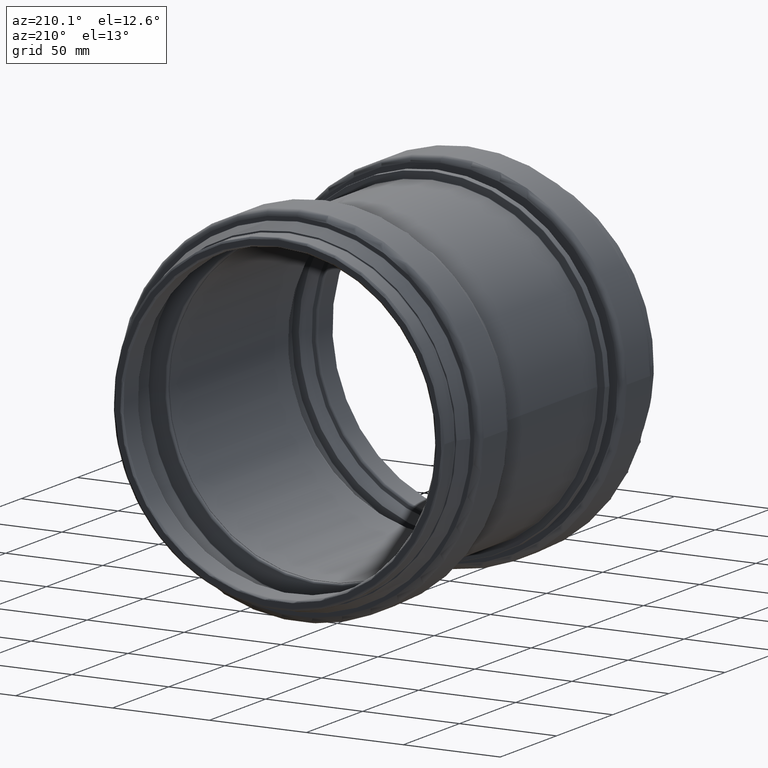
[diagram: clean part render]
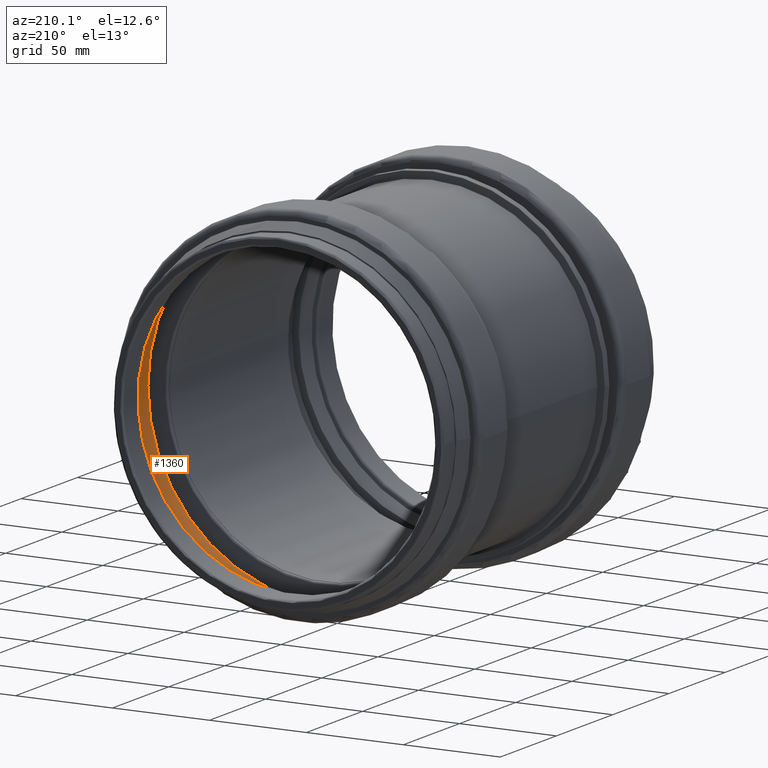
[diagram: same view with one face highlighted and labeled with its STEP entity id]
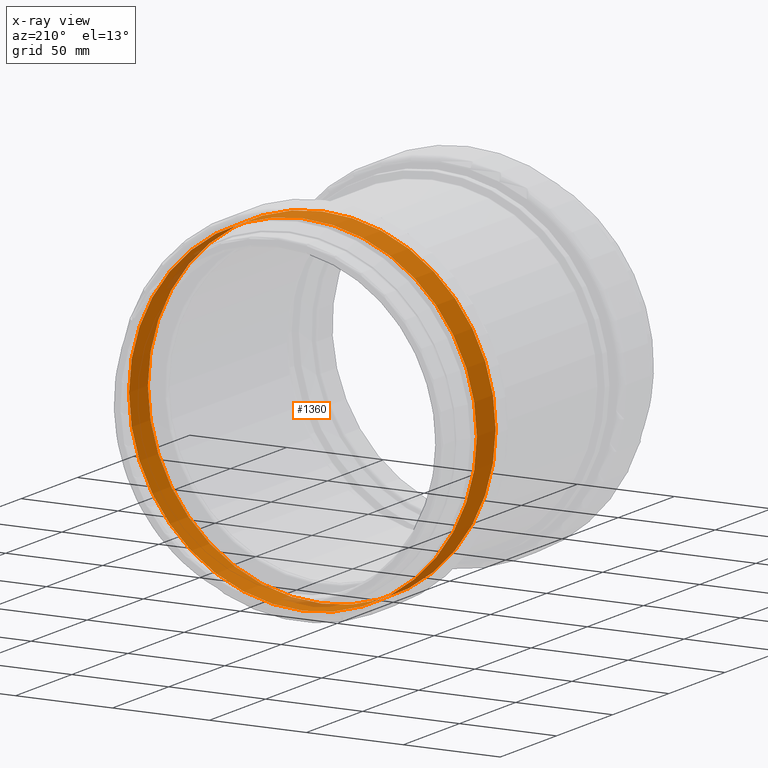
[diagram: x-ray of the same camera — body ghosted, the highlighted face saturated]
A machine part, auxiliary view. The second image highlights one B-rep face of the part: STEP entity #1360.
The next image is the same camera in x-ray: the body ghosted, the highlighted face saturated — about 3% of this face is hidden behind the body in this view.
In plain terms, the highlighted cylindrical surface (bore or boss wall) has radius 89.7 mm, axis along (0, -1, 0).
Its self-contained STEP definition (entity closure, byte-faithful):
#53=LINE('',#2517,#83);
#83=VECTOR('',#2097,89.7);
#102=CYLINDRICAL_SURFACE('',#1607,89.7);
#191=FACE_OUTER_BOUND('',#277,.T.);
#277=EDGE_LOOP('',(#1126,#1127,#1128,#1129,#1130,#1131));
#431=CIRCLE('',#1604,89.7);
#432=CIRCLE('',#1605,89.7);
#434=CIRCLE('',#1608,89.7);
#435=CIRCLE('',#1609,89.7);
#568=VERTEX_POINT('',#2508);
#569=VERTEX_POINT('',#2509);
#570=VERTEX_POINT('',#2514);
#571=VERTEX_POINT('',#2515);
#756=EDGE_CURVE('',#568,#569,#431,.T.);
#757=EDGE_CURVE('',#569,#568,#432,.T.);
#759=EDGE_CURVE('',#570,#571,#434,.T.);
#760=EDGE_CURVE('',#570,#568,#53,.T.);
#761=EDGE_CURVE('',#571,#570,#435,.T.);
#1126=ORIENTED_EDGE('',*,*,#759,.F.);
#1127=ORIENTED_EDGE('',*,*,#760,.T.);
#1128=ORIENTED_EDGE('',*,*,#756,.T.);
#1129=ORIENTED_EDGE('',*,*,#757,.T.);
#1130=ORIENTED_EDGE('',*,*,#760,.F.);
#1131=ORIENTED_EDGE('',*,*,#761,.F.);
#1360=ADVANCED_FACE('',(#191),#102,.F.);
#1604=AXIS2_PLACEMENT_3D('',#2510,#2087,#2088);
#1605=AXIS2_PLACEMENT_3D('',#2511,#2089,#2090);
#1607=AXIS2_PLACEMENT_3D('',#2513,#2093,#2094);
#1608=AXIS2_PLACEMENT_3D('',#2516,#2095,#2096);
#1609=AXIS2_PLACEMENT_3D('',#2518,#2098,#2099);
#2087=DIRECTION('center_axis',(0.,-1.,0.));
#2088=DIRECTION('ref_axis',(1.,0.,0.));
#2089=DIRECTION('center_axis',(0.,-1.,0.));
#2090=DIRECTION('ref_axis',(1.,0.,0.));
#2093=DIRECTION('center_axis',(0.,-1.,0.));
#2094=DIRECTION('ref_axis',(1.,0.,0.));
#2095=DIRECTION('center_axis',(0.,-1.,0.));
#2096=DIRECTION('ref_axis',(1.,0.,0.));
#2097=DIRECTION('',(0.,-1.,0.));
#2098=DIRECTION('center_axis',(0.,-1.,0.));
#2099=DIRECTION('ref_axis',(1.,0.,0.));
#2508=CARTESIAN_POINT('',(-84.7457284373839,55.2748993522052,-1.09850817883518E-14));
#2509=CARTESIAN_POINT('',(4.95427156261608,55.2748993522052,89.7));
#2510=CARTESIAN_POINT('Origin',(4.95427156261609,55.2748993522052,0.));
#2511=CARTESIAN_POINT('Origin',(4.95427156261609,55.2748993522052,0.));
#2513=CARTESIAN_POINT('Origin',(4.95427156261609,63.6547408864192,0.));
#2514=CARTESIAN_POINT('',(-84.7457284373839,72.0345824206332,-1.09850817883518E-14));
#2515=CARTESIAN_POINT('',(4.95427156261608,72.0345824206332,89.7));
#2516=CARTESIAN_POINT('Origin',(4.95427156261609,72.0345824206332,0.));
#2517=CARTESIAN_POINT('',(-84.7457284373839,63.6547408864192,-1.09850817883518E-14));
#2518=CARTESIAN_POINT('Origin',(4.95427156261609,72.0345824206332,0.));